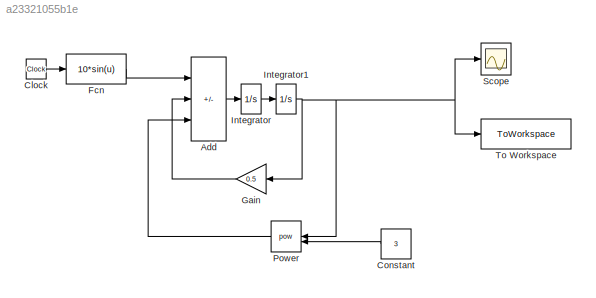
MODEL slx_a23321055b1e
KIND model
CONFIG AbsTol = auto
CONFIG EnableMultiTasking = off
CONFIG FixedStep = auto
CONFIG MaxStep = auto
CONFIG MinStep = auto
CONFIG RelTol = 1e-3
CONFIG SampleTimeConstraint = Unconstrained
CONFIG SolverName = VariableStepAuto
CONFIG StartTime = 0.0
CONFIG StopTime = 30.0
BLOCK [Sum] Add
  IconShape = rectangular
  Inputs = +--
BLOCK [Clock] Clock
BLOCK [Constant] Constant
  Value = 3
BLOCK [Fcn] Fcn
  Expr = 10*sin(u)
BLOCK [Gain] Gain
  Gain = 0.5
BLOCK [Integrator] Integrator
BLOCK [Integrator] Integrator1
BLOCK [Math] Power
  Operator = pow
BLOCK [Scope] Scope
  ActiveDisplayYMaximum = 1.3999722904070659E+9
  ActiveDisplayYMinimum = -9.1575824839286385E+9
  Floating = off
  GraphicalSettings = {"Style":{"BackgroundColor":[0.12941176470588237,0.12941176470588237,0.12941176470588237],"AxesColor":[0.07058823529411765,0.07058823529411765,0.07058823529411765],"LabelsColor":[0.8509803921568627,0.8509803921568627,0.8509803921568627],"PreserveColors":false,"Visible":[true],"LineStyle":["-"],"LineWidth":[1.5],"BarWidth":[0.9],"LineColor":["auto"],"LineFaceAlpha":[1],"LineEdgeAlpha":[1],"Marker":...<+1893ch>
  MultipleDisplayCache = [{"MaxYLimMag":9.1575824839286385E+9,"MaxYLimReal":1.3999722904070659E+9,"MinYLimMag":0,"MinYLimReal":-9.1575824839286385E+9,"PlotAsMagnitudePhase":false,"ShowGrid":true,"ShowLegend":false,"Title":"%<SignalLabel>","YLabel":""}]
  NumInputPorts = 1
  ScopeFrameLocation = window
  WasSavedAsWebScope = on
  WindowPosition = [680.000000,330.000000,560.000000,420.000000,]
BLOCK [ToWorkspace] To Workspace
  FixptAsFi = on
  MaxDataPoints = inf
  SampleTime = -1
  VariableName = simout
LINE Add:1 -> Integrator:1
LINE Clock:1 -> Fcn:1
LINE Constant:1 -> Power:2
LINE Fcn:1 -> Add:1
LINE Gain:1 -> Add:2
NET Integrator1:1 -> Gain:1, Power:1, Scope:1, To Workspace:1
LINE Integrator:1 -> Integrator1:1
LINE Power:1 -> Add:3
note: NET lines group one-source signal fan-out (src -> all destinations, sorted); 1:1 wires keep LINE
